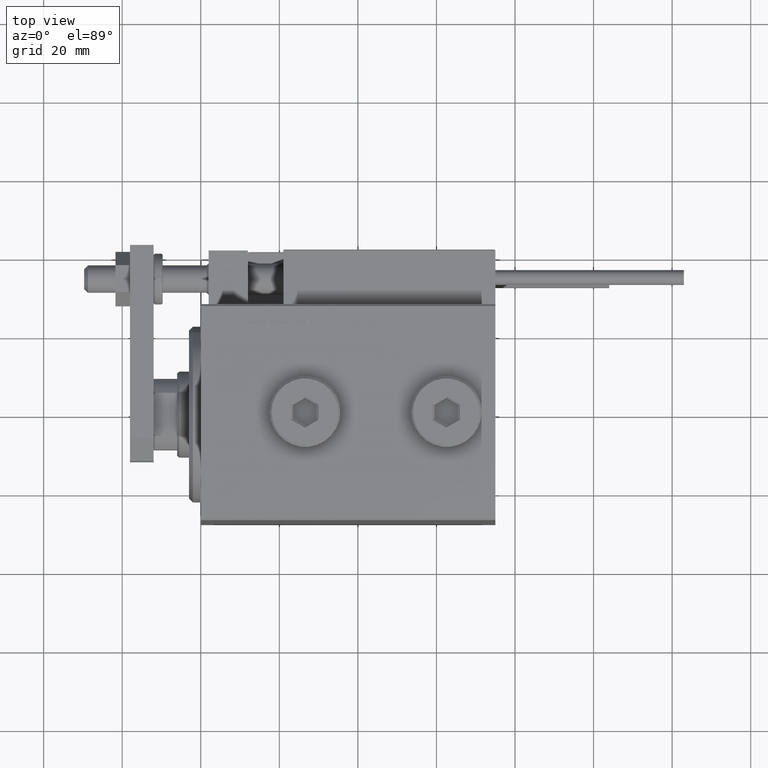
[diagram: clean part render]
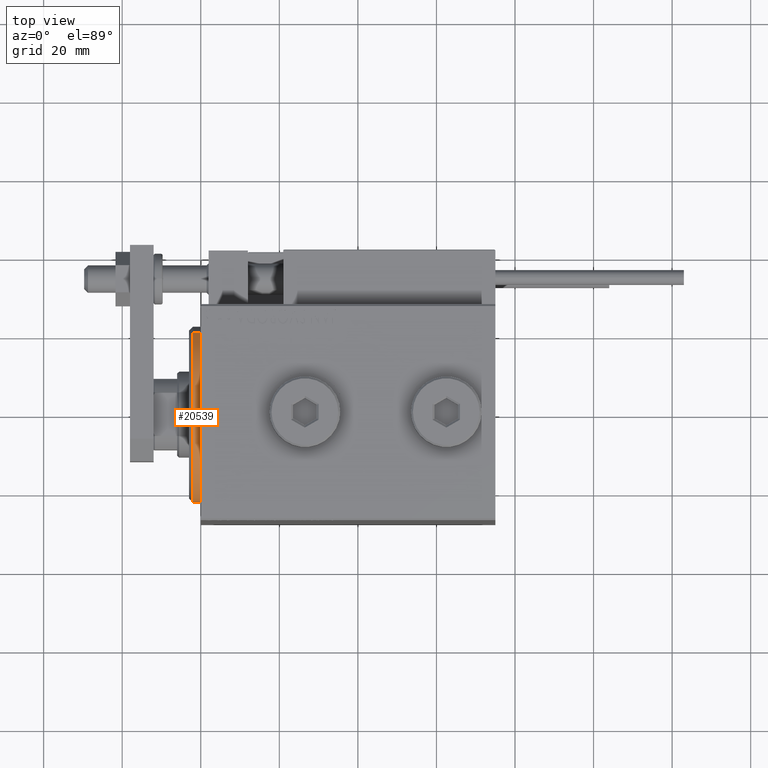
[diagram: same view with one face highlighted and labeled with its STEP entity id]
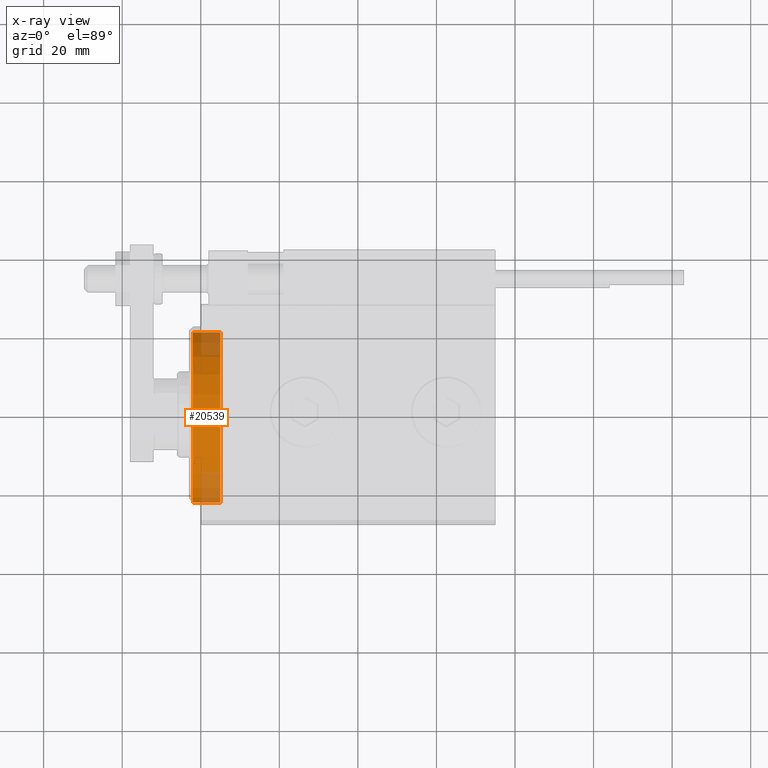
[diagram: x-ray of the same camera — body ghosted, the highlighted face saturated]
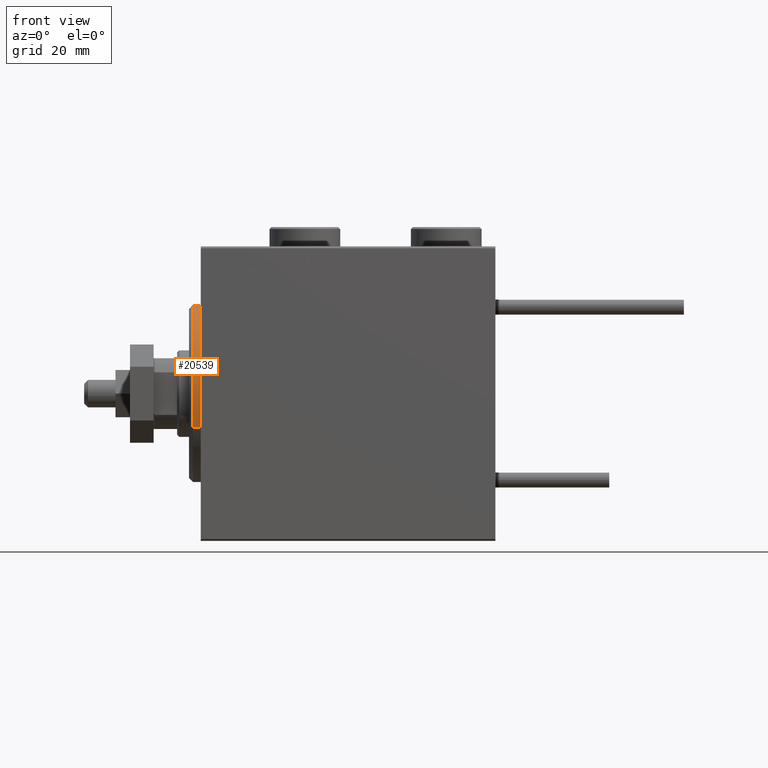
[diagram: same view with one face highlighted and labeled with its STEP entity id]
A machine part, top view. The second image highlights one B-rep face of the part: STEP entity #20539.
The next image is the same camera in x-ray: the body ghosted, the highlighted face saturated — about 22% of this face is hidden behind the body in this view.
A second angle (front view) of the same face is appended — the face is thin or edge-on in the first view.
In plain terms, the highlighted cylindrical surface (partial cylindrical patch) has radius 22.5 mm, axis along (1, 0, 0).
Its self-contained STEP definition (entity closure, byte-faithful):
#1103 = ORIENTED_EDGE ( 'NONE', *, *, #34939, .T. ) ;
#1510 = EDGE_CURVE ( 'NONE', #4803, #30282, #29128, .T. ) ;
#1614 = EDGE_CURVE ( 'NONE', #30282, #3383, #20100, .T. ) ;
#3383 = VERTEX_POINT ( 'NONE', #13245 ) ;
#4803 = VERTEX_POINT ( 'NONE', #46193 ) ;
#6764 = CARTESIAN_POINT ( 'NONE',  ( 1.999999999999999112, 0.000000000000000000, 0.000000000000000000 ) ) ;
#7449 = ORIENTED_EDGE ( 'NONE', *, *, #1510, .F. ) ;
#9018 = DIRECTION ( 'NONE',  ( 0.000000000000000000, 0.000000000000000000, 1.000000000000000000 ) ) ;
#13245 = CARTESIAN_POINT ( 'NONE',  ( -5.000000000000000000, 0.000000000000000000, 22.50000000000000355 ) ) ;
#14602 = VERTEX_POINT ( 'NONE', #37667 ) ;
#15947 = VECTOR ( 'NONE', #28358, 1000.000000000000000 ) ;
#18202 = ORIENTED_EDGE ( 'NONE', *, *, #43595, .T. ) ;
#20100 = CIRCLE ( 'NONE', #49271, 22.50000000000000355 ) ;
#20162 = AXIS2_PLACEMENT_3D ( 'NONE', #44713, #49143, #9018 ) ;
#20539 = ADVANCED_FACE ( 'NONE', ( #40778 ), #33217, .T. ) ;
#22380 = DIRECTION ( 'NONE',  ( 0.000000000000000000, 0.000000000000000000, -1.000000000000000000 ) ) ;
#27279 = CARTESIAN_POINT ( 'NONE',  ( -5.000000000000000000, 0.000000000000000000, 0.000000000000000000 ) ) ;
#28358 = DIRECTION ( 'NONE',  ( -1.000000000000000000, -0.000000000000000000, -0.000000000000000000 ) ) ;
#28609 = CARTESIAN_POINT ( 'NONE',  ( 3.000000000000000000, 2.755455298081545172E-15, -22.50000000000000355 ) ) ;
#29128 = LINE ( 'NONE', #28609, #15947 ) ;
#29888 = CARTESIAN_POINT ( 'NONE',  ( 3.000000000000000000, 0.000000000000000000, 22.50000000000000355 ) ) ;
#30282 = VERTEX_POINT ( 'NONE', #40864 ) ;
#30387 = DIRECTION ( 'NONE',  ( -1.000000000000000000, -0.000000000000000000, -0.000000000000000000 ) ) ;
#30651 = LINE ( 'NONE', #29888, #47232 ) ;
#30925 = DIRECTION ( 'NONE',  ( -1.000000000000000000, 0.000000000000000000, 0.000000000000000000 ) ) ;
#31181 = DIRECTION ( 'NONE',  ( 0.000000000000000000, 0.000000000000000000, 1.000000000000000000 ) ) ;
#33217 = CYLINDRICAL_SURFACE ( 'NONE', #20162, 22.50000000000000355 ) ;
#34939 = EDGE_CURVE ( 'NONE', #14602, #3383, #30651, .T. ) ;
#37667 = CARTESIAN_POINT ( 'NONE',  ( 1.999999999999999112, 0.000000000000000000, 22.50000000000000355 ) ) ;
#39890 = AXIS2_PLACEMENT_3D ( 'NONE', #6764, #46124, #22380 ) ;
#40778 = FACE_OUTER_BOUND ( 'NONE', #46905, .T. ) ;
#40864 = CARTESIAN_POINT ( 'NONE',  ( -5.000000000000000000, 2.755455298081545172E-15, -22.50000000000000355 ) ) ;
#43251 = CIRCLE ( 'NONE', #39890, 22.50000000000000355 ) ;
#43595 = EDGE_CURVE ( 'NONE', #4803, #14602, #43251, .T. ) ;
#44713 = CARTESIAN_POINT ( 'NONE',  ( 3.000000000000000000, 0.000000000000000000, 0.000000000000000000 ) ) ;
#46124 = DIRECTION ( 'NONE',  ( -1.000000000000000000, 0.000000000000000000, 0.000000000000000000 ) ) ;
#46193 = CARTESIAN_POINT ( 'NONE',  ( 1.999999999999999112, 2.755455298081545172E-15, -22.50000000000000355 ) ) ;
#46421 = ORIENTED_EDGE ( 'NONE', *, *, #1614, .F. ) ;
#46905 = EDGE_LOOP ( 'NONE', ( #7449, #18202, #1103, #46421 ) ) ;
#47232 = VECTOR ( 'NONE', #30387, 1000.000000000000000 ) ;
#49143 = DIRECTION ( 'NONE',  ( -1.000000000000000000, -0.000000000000000000, -0.000000000000000000 ) ) ;
#49271 = AXIS2_PLACEMENT_3D ( 'NONE', #27279, #30925, #31181 ) ;